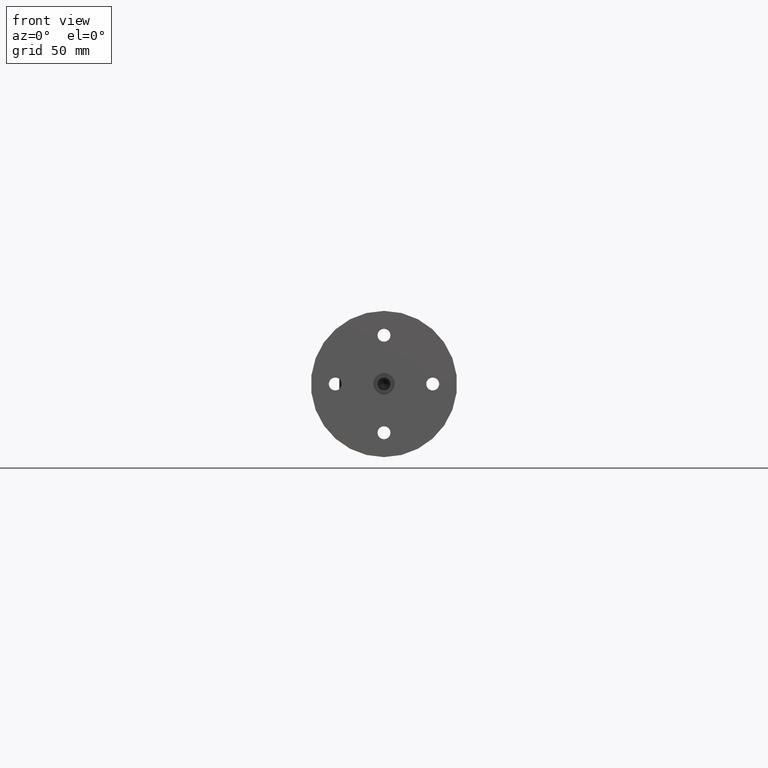
[diagram: clean part render]
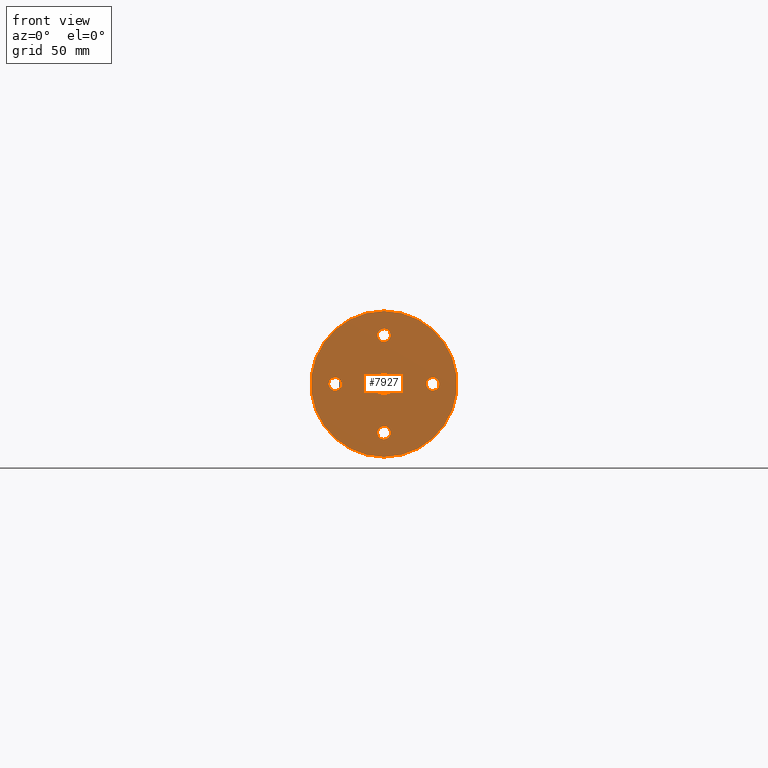
[diagram: same view with one face highlighted and labeled with its STEP entity id]
A machine part, front view. The second image highlights one B-rep face of the part: STEP entity #7927.
In plain terms, the highlighted planar face has unit normal (0, 1, 0).
Its self-contained STEP definition (entity closure, byte-faithful):
#105 = CIRCLE ( 'NONE', #15121, 3.300000000000004300 ) ;
#192 = DIRECTION ( 'NONE',  ( 0.0000000000000000000, 0.0000000000000000000, -1.000000000000000000 ) ) ;
#423 = ORIENTED_EDGE ( 'NONE', *, *, #15055, .T. ) ;
#916 = DIRECTION ( 'NONE',  ( -0.0000000000000000000, -1.000000000000000000, -0.0000000000000000000 ) ) ;
#929 = EDGE_CURVE ( 'NONE', #5955, #2193, #1506, .T. ) ;
#945 = CARTESIAN_POINT ( 'NONE',  ( -1.745740669421566700E-013, -3.070097820889738900, 25.00000000000000000 ) ) ;
#971 = FACE_OUTER_BOUND ( 'NONE', #8823, .T. ) ;
#1263 = AXIS2_PLACEMENT_3D ( 'NONE', #10077, #916, #2504 ) ;
#1426 = CARTESIAN_POINT ( 'NONE',  ( 1.555250069354419300E-015, -3.070097820889738900, 0.0000000000000000000 ) ) ;
#1506 = CIRCLE ( 'NONE', #12130, 37.50000000000000000 ) ;
#2037 = ORIENTED_EDGE ( 'NONE', *, *, #2130, .T. ) ;
#2130 = EDGE_CURVE ( 'NONE', #8648, #2457, #9281, .T. ) ;
#2152 = FACE_BOUND ( 'NONE', #3004, .T. ) ;
#2193 = VERTEX_POINT ( 'NONE', #6236 ) ;
#2267 = ORIENTED_EDGE ( 'NONE', *, *, #16088, .T. ) ;
#2379 = CARTESIAN_POINT ( 'NONE',  ( 0.0000000000000000000, -3.070097820889738900, 0.0000000000000000000 ) ) ;
#2457 = VERTEX_POINT ( 'NONE', #8639 ) ;
#2504 = DIRECTION ( 'NONE',  ( 0.0000000000000000000, 0.0000000000000000000, -1.000000000000000000 ) ) ;
#2678 = DIRECTION ( 'NONE',  ( 0.0000000000000000000, 0.0000000000000000000, 1.000000000000000000 ) ) ;
#2742 = VERTEX_POINT ( 'NONE', #6151 ) ;
#2759 = DIRECTION ( 'NONE',  ( 0.0000000000000000000, 0.0000000000000000000, 1.000000000000000000 ) ) ;
#2790 = CARTESIAN_POINT ( 'NONE',  ( 25.00000000000000000, -3.070097820889738900, 3.300000000000091300 ) ) ;
#2841 = DIRECTION ( 'NONE',  ( -0.0000000000000000000, -1.000000000000000000, -0.0000000000000000000 ) ) ;
#2953 = AXIS2_PLACEMENT_3D ( 'NONE', #1426, #2961, #4517 ) ;
#2961 = DIRECTION ( 'NONE',  ( 0.0000000000000000000, 1.000000000000000000, 0.0000000000000000000 ) ) ;
#3004 = EDGE_LOOP ( 'NONE', ( #423, #9818 ) ) ;
#3383 = CIRCLE ( 'NONE', #5619, 3.300000000000004300 ) ;
#3594 = EDGE_CURVE ( 'NONE', #12213, #4504, #5138, .T. ) ;
#4073 = EDGE_CURVE ( 'NONE', #5989, #2742, #12043, .T. ) ;
#4174 = CARTESIAN_POINT ( 'NONE',  ( -1.745740669421566700E-013, -3.070097820889738900, 28.30000000000000400 ) ) ;
#4241 = EDGE_CURVE ( 'NONE', #4504, #12213, #17024, .T. ) ;
#4331 = DIRECTION ( 'NONE',  ( 0.0000000000000000000, 0.0000000000000000000, -1.000000000000000000 ) ) ;
#4383 = CARTESIAN_POINT ( 'NONE',  ( 25.00000000000000000, -3.070097820889738900, 8.728703347107833400E-014 ) ) ;
#4504 = VERTEX_POINT ( 'NONE', #4174 ) ;
#4517 = DIRECTION ( 'NONE',  ( 0.0000000000000000000, -0.0000000000000000000, 1.000000000000000000 ) ) ;
#4690 = CARTESIAN_POINT ( 'NONE',  ( 25.00000000000000000, -3.070097820889738900, -3.299999999999917200 ) ) ;
#5138 = CIRCLE ( 'NONE', #5219, 3.300000000000004300 ) ;
#5219 = AXIS2_PLACEMENT_3D ( 'NONE', #945, #10102, #14391 ) ;
#5265 = EDGE_CURVE ( 'NONE', #2742, #5989, #17476, .T. ) ;
#5520 = FACE_BOUND ( 'NONE', #7669, .T. ) ;
#5559 = CARTESIAN_POINT ( 'NONE',  ( 4.041334437186270900E-016, -3.070097820889738900, -28.30000000000000400 ) ) ;
#5619 = AXIS2_PLACEMENT_3D ( 'NONE', #13258, #17886, #2678 ) ;
#5955 = VERTEX_POINT ( 'NONE', #11967 ) ;
#5971 = CARTESIAN_POINT ( 'NONE',  ( 0.0000000000000000000, -3.070097820889738900, -21.69999999999999600 ) ) ;
#5980 = VERTEX_POINT ( 'NONE', #5971 ) ;
#5987 = CARTESIAN_POINT ( 'NONE',  ( 0.0000000000000000000, -3.070097820889738900, 0.0000000000000000000 ) ) ;
#5989 = VERTEX_POINT ( 'NONE', #18036 ) ;
#6130 = EDGE_CURVE ( 'NONE', #2193, #5955, #19345, .T. ) ;
#6151 = CARTESIAN_POINT ( 'NONE',  ( 6.735557395310437100E-016, -3.070097820889738900, 5.499999999999994700 ) ) ;
#6229 = CARTESIAN_POINT ( 'NONE',  ( 0.0000000000000000000, -3.070097820889738900, -25.00000000000000000 ) ) ;
#6236 = CARTESIAN_POINT ( 'NONE',  ( 4.592425496802574400E-015, -3.070097820889738900, 37.50000000000000000 ) ) ;
#6281 = AXIS2_PLACEMENT_3D ( 'NONE', #16775, #15382, #13896 ) ;
#6363 = CARTESIAN_POINT ( 'NONE',  ( -25.00000000000000000, -3.070097820889738900, -2.618611004132350100E-013 ) ) ;
#6488 = CARTESIAN_POINT ( 'NONE',  ( 25.00000000000000000, -3.070097820889738900, 8.728703347107833400E-014 ) ) ;
#6512 = ORIENTED_EDGE ( 'NONE', *, *, #929, .T. ) ;
#6569 = DIRECTION ( 'NONE',  ( 0.0000000000000000000, 0.0000000000000000000, 1.000000000000000000 ) ) ;
#7069 = DIRECTION ( 'NONE',  ( -0.0000000000000000000, -1.000000000000000000, -0.0000000000000000000 ) ) ;
#7500 = PLANE ( 'NONE',  #2953 ) ;
#7669 = EDGE_LOOP ( 'NONE', ( #19152, #17305 ) ) ;
#7717 = DIRECTION ( 'NONE',  ( -0.0000000000000000000, 1.000000000000000000, -0.0000000000000000000 ) ) ;
#7927 = ADVANCED_FACE ( 'NONE', ( #9099, #14068, #5520, #10543, #2152, #971 ), #7500, .F. ) ;
#8639 = CARTESIAN_POINT ( 'NONE',  ( -25.00000000000000000, -3.070097820889738900, 3.299999999999742300 ) ) ;
#8648 = VERTEX_POINT ( 'NONE', #13784 ) ;
#8823 = EDGE_LOOP ( 'NONE', ( #6512, #15172 ) ) ;
#9099 = FACE_BOUND ( 'NONE', #11870, .T. ) ;
#9162 = VERTEX_POINT ( 'NONE', #2790 ) ;
#9281 = CIRCLE ( 'NONE', #19322, 3.300000000000004300 ) ;
#9302 = EDGE_CURVE ( 'NONE', #2457, #8648, #9995, .T. ) ;
#9433 = DIRECTION ( 'NONE',  ( 0.0000000000000000000, 0.0000000000000000000, 1.000000000000000000 ) ) ;
#9712 = AXIS2_PLACEMENT_3D ( 'NONE', #5987, #2841, #4331 ) ;
#9818 = ORIENTED_EDGE ( 'NONE', *, *, #11510, .T. ) ;
#9875 = AXIS2_PLACEMENT_3D ( 'NONE', #6488, #15755, #17165 ) ;
#9995 = CIRCLE ( 'NONE', #6281, 3.300000000000004300 ) ;
#10077 = CARTESIAN_POINT ( 'NONE',  ( 0.0000000000000000000, -3.070097820889738900, 0.0000000000000000000 ) ) ;
#10102 = DIRECTION ( 'NONE',  ( -0.0000000000000000000, 1.000000000000000000, -0.0000000000000000000 ) ) ;
#10433 = VERTEX_POINT ( 'NONE', #5559 ) ;
#10520 = DIRECTION ( 'NONE',  ( -0.0000000000000000000, 1.000000000000000000, -0.0000000000000000000 ) ) ;
#10543 = FACE_BOUND ( 'NONE', #18752, .T. ) ;
#10678 = AXIS2_PLACEMENT_3D ( 'NONE', #6229, #7717, #10784 ) ;
#10784 = DIRECTION ( 'NONE',  ( 0.0000000000000000000, 0.0000000000000000000, 1.000000000000000000 ) ) ;
#11244 = AXIS2_PLACEMENT_3D ( 'NONE', #2379, #19259, #192 ) ;
#11409 = EDGE_CURVE ( 'NONE', #9162, #16419, #105, .T. ) ;
#11510 = EDGE_CURVE ( 'NONE', #10433, #5980, #15350, .T. ) ;
#11680 = DIRECTION ( 'NONE',  ( 0.0000000000000000000, 0.0000000000000000000, -1.000000000000000000 ) ) ;
#11794 = EDGE_LOOP ( 'NONE', ( #15983, #2037 ) ) ;
#11870 = EDGE_LOOP ( 'NONE', ( #19492, #14640 ) ) ;
#11967 = CARTESIAN_POINT ( 'NONE',  ( 0.0000000000000000000, -3.070097820889738900, -37.50000000000000000 ) ) ;
#12043 = CIRCLE ( 'NONE', #11244, 5.499999999999994700 ) ;
#12130 = AXIS2_PLACEMENT_3D ( 'NONE', #19400, #7069, #11680 ) ;
#12213 = VERTEX_POINT ( 'NONE', #15067 ) ;
#13258 = CARTESIAN_POINT ( 'NONE',  ( 0.0000000000000000000, -3.070097820889738900, -25.00000000000000000 ) ) ;
#13784 = CARTESIAN_POINT ( 'NONE',  ( -25.00000000000000000, -3.070097820889738900, -3.300000000000266300 ) ) ;
#13890 = DIRECTION ( 'NONE',  ( -0.0000000000000000000, 1.000000000000000000, -0.0000000000000000000 ) ) ;
#13896 = DIRECTION ( 'NONE',  ( 0.0000000000000000000, 0.0000000000000000000, 1.000000000000000000 ) ) ;
#14068 = FACE_BOUND ( 'NONE', #11794, .T. ) ;
#14267 = AXIS2_PLACEMENT_3D ( 'NONE', #18524, #13890, #6569 ) ;
#14391 = DIRECTION ( 'NONE',  ( 0.0000000000000000000, 0.0000000000000000000, 1.000000000000000000 ) ) ;
#14522 = CIRCLE ( 'NONE', #9875, 3.300000000000004300 ) ;
#14640 = ORIENTED_EDGE ( 'NONE', *, *, #5265, .F. ) ;
#15055 = EDGE_CURVE ( 'NONE', #5980, #10433, #3383, .T. ) ;
#15067 = CARTESIAN_POINT ( 'NONE',  ( -1.741699334984380500E-013, -3.070097820889738900, 21.69999999999999600 ) ) ;
#15121 = AXIS2_PLACEMENT_3D ( 'NONE', #4383, #10520, #2759 ) ;
#15172 = ORIENTED_EDGE ( 'NONE', *, *, #6130, .T. ) ;
#15350 = CIRCLE ( 'NONE', #10678, 3.300000000000004300 ) ;
#15382 = DIRECTION ( 'NONE',  ( -0.0000000000000000000, 1.000000000000000000, -0.0000000000000000000 ) ) ;
#15755 = DIRECTION ( 'NONE',  ( -0.0000000000000000000, 1.000000000000000000, -0.0000000000000000000 ) ) ;
#15983 = ORIENTED_EDGE ( 'NONE', *, *, #9302, .T. ) ;
#16088 = EDGE_CURVE ( 'NONE', #16419, #9162, #14522, .T. ) ;
#16116 = ORIENTED_EDGE ( 'NONE', *, *, #11409, .T. ) ;
#16419 = VERTEX_POINT ( 'NONE', #4690 ) ;
#16775 = CARTESIAN_POINT ( 'NONE',  ( -25.00000000000000000, -3.070097820889738900, -2.618611004132350100E-013 ) ) ;
#17024 = CIRCLE ( 'NONE', #14267, 3.300000000000004300 ) ;
#17165 = DIRECTION ( 'NONE',  ( 0.0000000000000000000, 0.0000000000000000000, 1.000000000000000000 ) ) ;
#17305 = ORIENTED_EDGE ( 'NONE', *, *, #3594, .T. ) ;
#17476 = CIRCLE ( 'NONE', #1263, 5.499999999999994700 ) ;
#17886 = DIRECTION ( 'NONE',  ( -0.0000000000000000000, 1.000000000000000000, -0.0000000000000000000 ) ) ;
#18036 = CARTESIAN_POINT ( 'NONE',  ( 0.0000000000000000000, -3.070097820889738900, -5.499999999999994700 ) ) ;
#18524 = CARTESIAN_POINT ( 'NONE',  ( -1.745740669421566700E-013, -3.070097820889738900, 25.00000000000000000 ) ) ;
#18578 = DIRECTION ( 'NONE',  ( -0.0000000000000000000, 1.000000000000000000, -0.0000000000000000000 ) ) ;
#18752 = EDGE_LOOP ( 'NONE', ( #16116, #2267 ) ) ;
#19152 = ORIENTED_EDGE ( 'NONE', *, *, #4241, .T. ) ;
#19259 = DIRECTION ( 'NONE',  ( -0.0000000000000000000, -1.000000000000000000, -0.0000000000000000000 ) ) ;
#19322 = AXIS2_PLACEMENT_3D ( 'NONE', #6363, #18578, #9433 ) ;
#19345 = CIRCLE ( 'NONE', #9712, 37.50000000000000000 ) ;
#19400 = CARTESIAN_POINT ( 'NONE',  ( 0.0000000000000000000, -3.070097820889738900, 0.0000000000000000000 ) ) ;
#19492 = ORIENTED_EDGE ( 'NONE', *, *, #4073, .F. ) ;